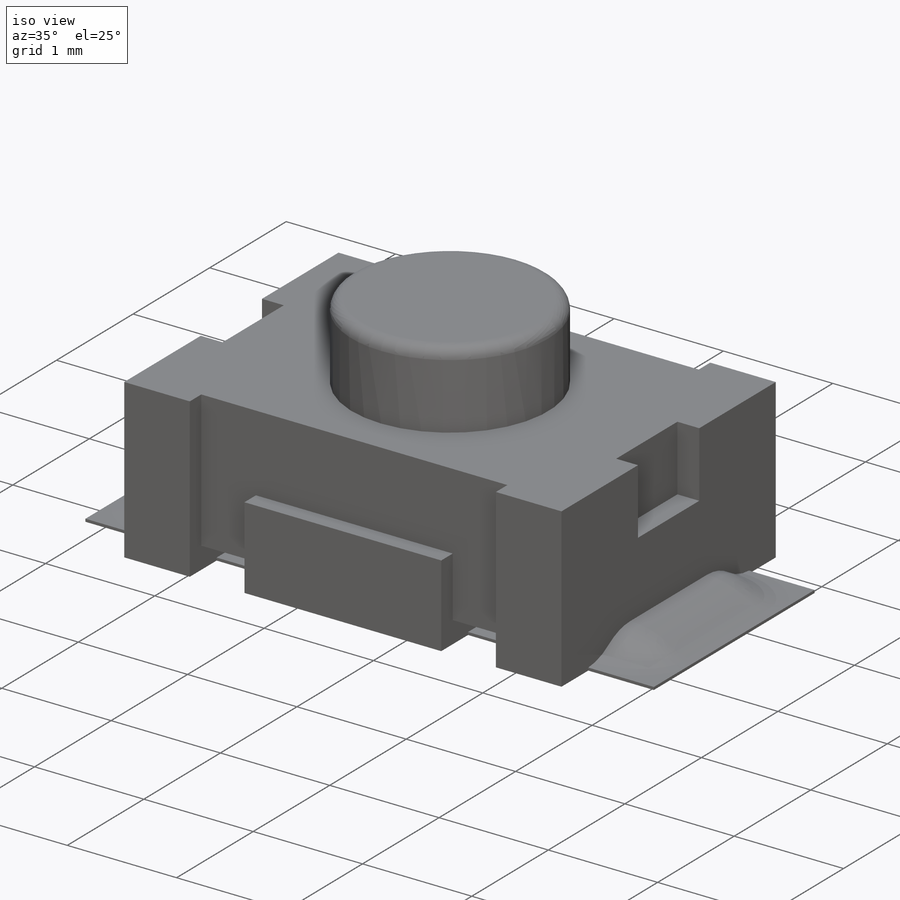
[diagram: iso view]
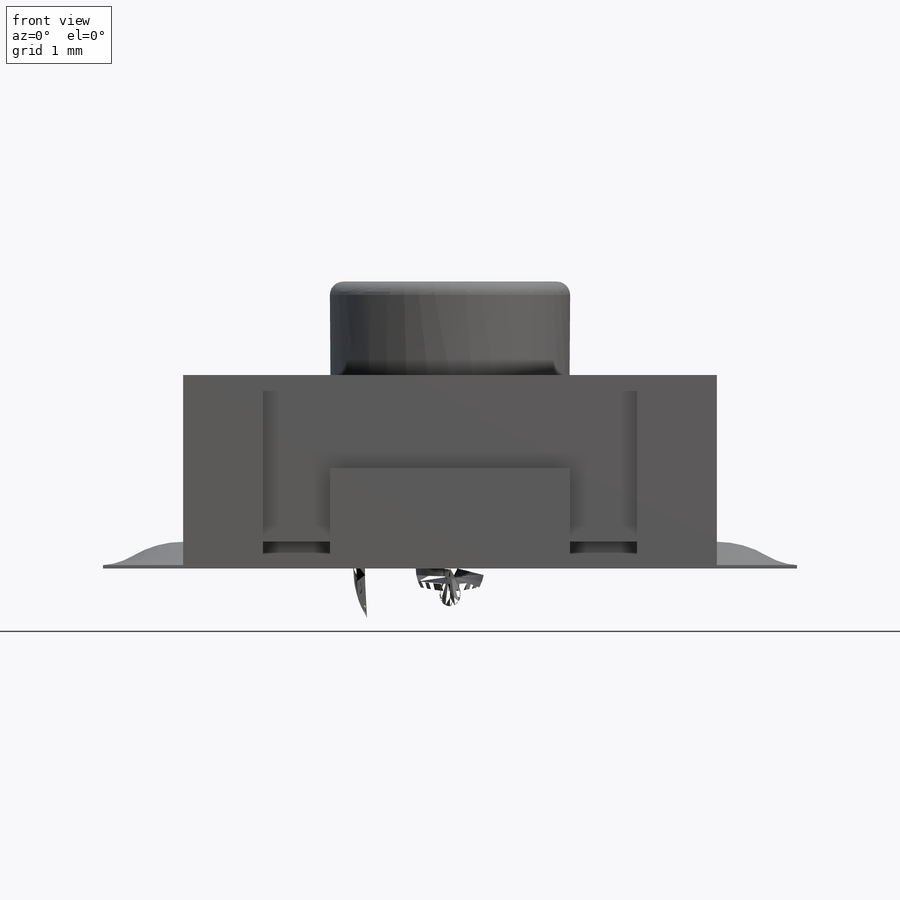
[diagram: front view]
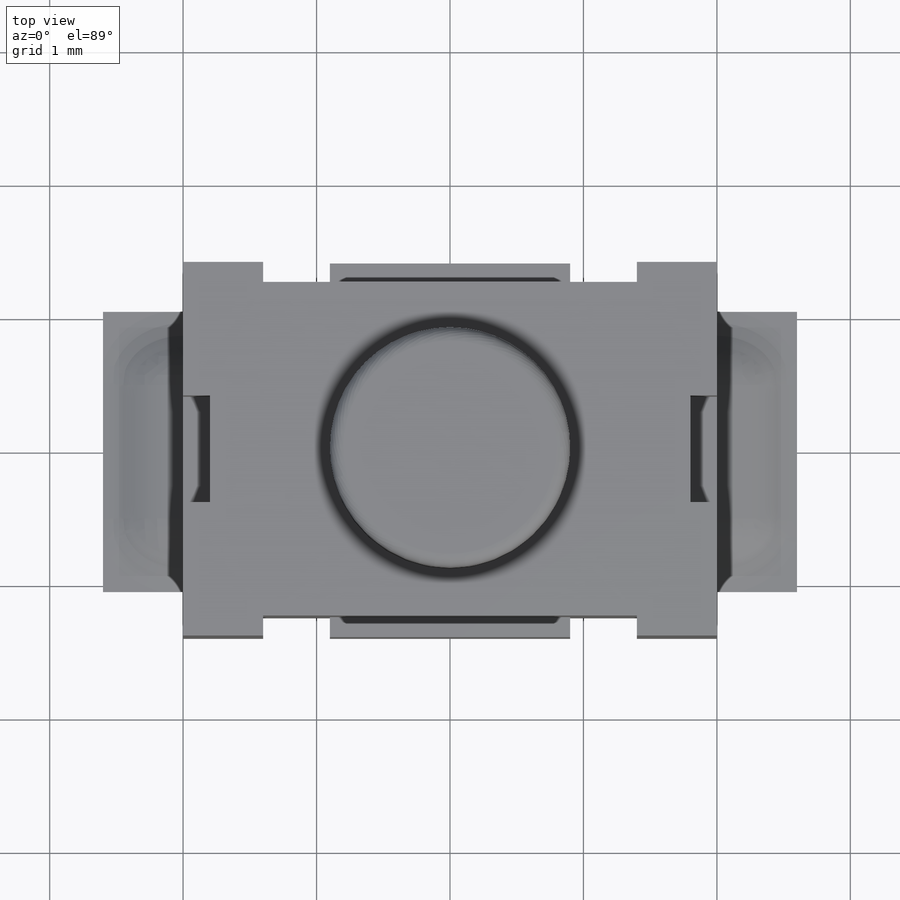
[diagram: top view]
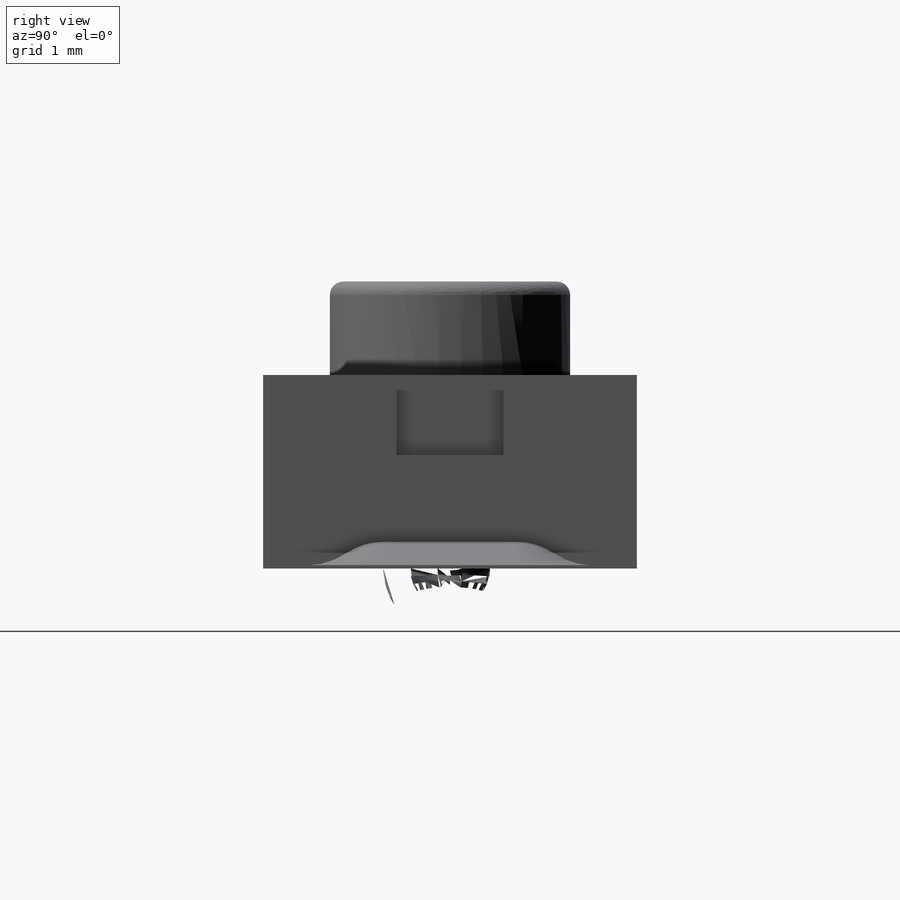
[diagram: right view]
SOLIDWORKS PART (.sldprt)
format: sldprt  version: not decoded by parser v0  size: 386,048 bytes
history: native  units: mm
features: sketch x9, cut_extrude x5, extrude x4, fillet x3, material x1 (+11 scaffold rows collapsed)
feature tree (33):
  scaffold x11  (default folders/planes/origin — collapsed)
  material  "ABS"
  sketch  "Sketch1"  dims[D1=4.0mm D2=2.8mm D3=1.4mm D4=2.0mm]
  extrude  "Boss-Extrude1"  Depth=1.45mm
  sketch  "Sketch2"  dims[D1=1.8mm]
  extrude  "Boss-Extrude2"  Depth=0.7mm
  fillet  "Fillet1"  Radius=0.1mm
  sketch  "Sketch3"  dims[D1=0.8mm D2=0.4mm D3=0.6mm]
  cut_extrude  "Cut-Extrude1"  Depth=0.2mm
  sketch  "Sketch4"
  cut_extrude  "Cut-Extrude2"  Depth=0.2mm
  sketch  "Sketch5"  dims[D1=0.7mm D2=2.8mm D3=1.4mm D4=0.5mm]
  cut_extrude  "Cut-Extrude3"  Depth=0.15mm
  sketch  "Sketch6"
  cut_extrude  "Cut-Extrude4"  Depth=0.15mm
  sketch  "Sketch7"  dims[D1=1.8mm]
  cut_extrude  "Cut-Extrude5"  Depth=0.2mm
  sketch  "Sketch8"  dims[D1=5.0mm D2=0.2mm D3=2.5mm]
  extrude  "Boss-Extrude4"  Depth=2mm
  fillet  "Fillet2"  Radius=0.5mm
  sketch  "Sketch9"  dims[D1=2.1mm D2=1.05mm D3=5.2mm D4=2.6mm]
  extrude  "Boss-Extrude5"  Depth=0.025mm
  fillet  "Fillet3"  Radius=0.5mm
decode coverage: 19 of 21 modeling features carry decoded parameters
note: suppression state not decoded; provenance and decode notes live in map.json
